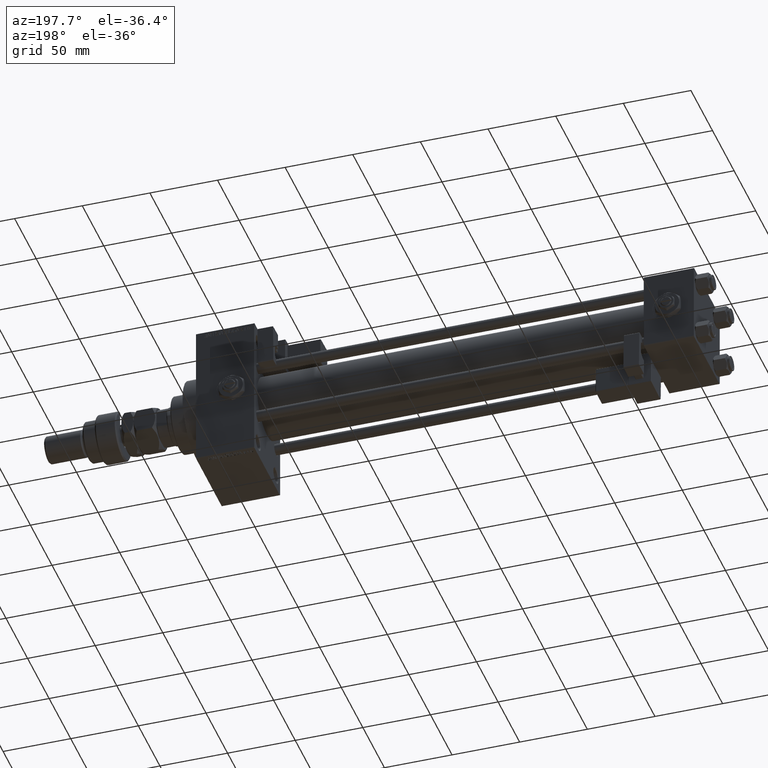
[diagram: clean part render]
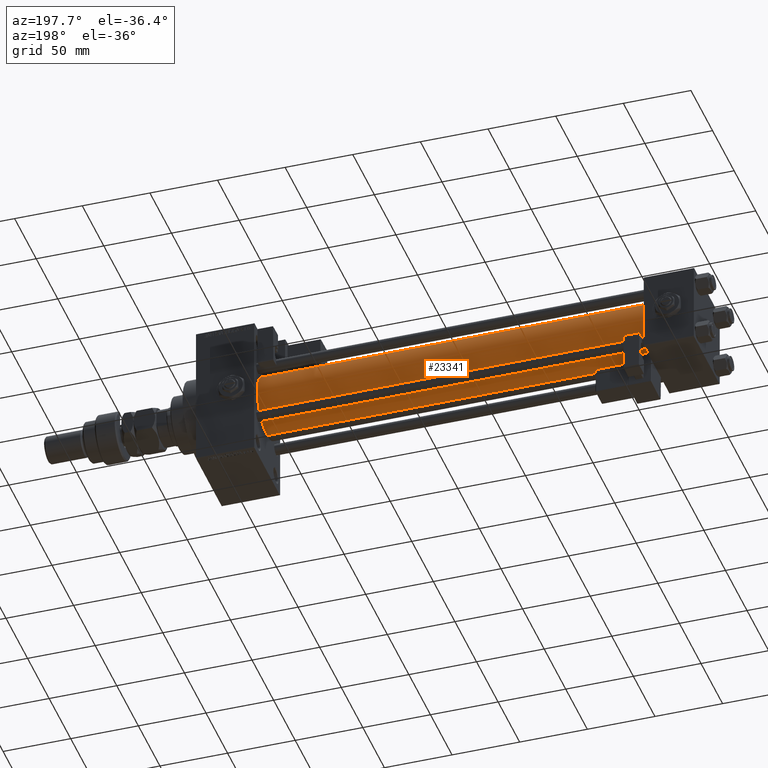
[diagram: same view with one face highlighted and labeled with its STEP entity id]
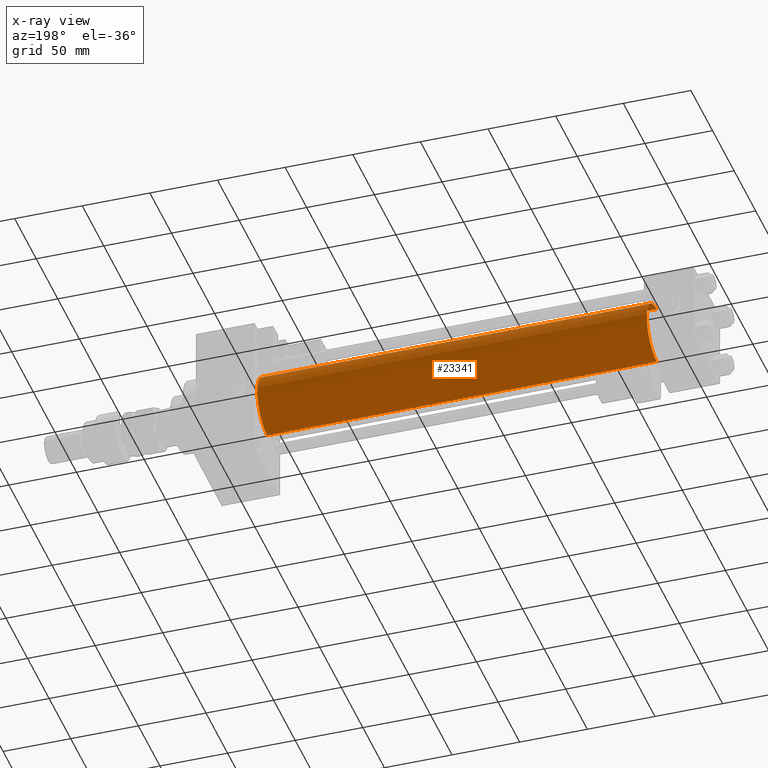
[diagram: x-ray of the same camera — body ghosted, the highlighted face saturated]
A machine part, auxiliary view. The second image highlights one B-rep face of the part: STEP entity #23341.
The next image is the same camera in x-ray: the body ghosted, the highlighted face saturated — about 0% of this face is hidden behind the body in this view.
In plain terms, the highlighted cylindrical surface (edge-blend (fillet) strip) has radius 23 mm, axis along (-1, -0, -0).
Its self-contained STEP definition (entity closure, byte-faithful):
#2811 = CARTESIAN_POINT ( 'NONE',  ( 324.9999999999999432, 2.146024240737016609E-16, -23.00000000000000000 ) ) ;
#4217 = CARTESIAN_POINT ( 'NONE',  ( 36.99999999999997868, -2.602085213965210642E-15, 23.00000000000000000 ) ) ;
#4526 = VERTEX_POINT ( 'NONE', #10812 ) ;
#4757 = CIRCLE ( 'NONE', #43355, 23.00000000000000000 ) ;
#5377 = EDGE_CURVE ( 'NONE', #18995, #4526, #4757, .T. ) ;
#8131 = DIRECTION ( 'NONE',  ( 1.000000000000000000, 0.000000000000000000, 0.000000000000000000 ) ) ;
#8669 = ORIENTED_EDGE ( 'NONE', *, *, #5377, .F. ) ;
#9619 = VERTEX_POINT ( 'NONE', #31274 ) ;
#9654 = VECTOR ( 'NONE', #31928, 1000.000000000000000 ) ;
#10812 = CARTESIAN_POINT ( 'NONE',  ( 324.9999999999999432, -2.602085213965210642E-15, 23.00000000000000000 ) ) ;
#13097 = EDGE_CURVE ( 'NONE', #9619, #38170, #47096, .T. ) ;
#13424 = CARTESIAN_POINT ( 'NONE',  ( 36.99999999999997868, -2.602085213965210642E-15, 0.000000000000000000 ) ) ;
#14097 = DIRECTION ( 'NONE',  ( -1.000000000000000000, -0.000000000000000000, -0.000000000000000000 ) ) ;
#16312 = ORIENTED_EDGE ( 'NONE', *, *, #22618, .T. ) ;
#17127 = ORIENTED_EDGE ( 'NONE', *, *, #13097, .T. ) ;
#17273 = DIRECTION ( 'NONE',  ( 1.000000000000000000, -0.000000000000000000, 0.000000000000000000 ) ) ;
#17935 = DIRECTION ( 'NONE',  ( 0.000000000000000000, 0.000000000000000000, 1.000000000000000000 ) ) ;
#18738 = FACE_OUTER_BOUND ( 'NONE', #47276, .T. ) ;
#18995 = VERTEX_POINT ( 'NONE', #25935 ) ;
#19743 = CARTESIAN_POINT ( 'NONE',  ( 324.9999999999999432, -2.602085213965210642E-15, 23.00000000000000000 ) ) ;
#20234 = AXIS2_PLACEMENT_3D ( 'NONE', #47312, #14097, #17935 ) ;
#22618 = EDGE_CURVE ( 'NONE', #18995, #9619, #53100, .T. ) ;
#22848 = CYLINDRICAL_SURFACE ( 'NONE', #20234, 23.00000000000000000 ) ;
#23341 = ADVANCED_FACE ( 'NONE', ( #18738 ), #22848, .T. ) ;
#23407 = AXIS2_PLACEMENT_3D ( 'NONE', #13424, #17273, #30164 ) ;
#24865 = DIRECTION ( 'NONE',  ( 0.000000000000000000, 0.000000000000000000, -1.000000000000000000 ) ) ;
#25935 = CARTESIAN_POINT ( 'NONE',  ( 324.9999999999999432, 2.146024240737016609E-16, -23.00000000000000000 ) ) ;
#28998 = CARTESIAN_POINT ( 'NONE',  ( 324.9999999999999432, -2.602085213965210642E-15, 0.000000000000000000 ) ) ;
#30164 = DIRECTION ( 'NONE',  ( 0.000000000000000000, 0.000000000000000000, 1.000000000000000000 ) ) ;
#30322 = EDGE_CURVE ( 'NONE', #4526, #38170, #52991, .T. ) ;
#31274 = CARTESIAN_POINT ( 'NONE',  ( 36.99999999999997868, 2.146024240737016609E-16, -23.00000000000000000 ) ) ;
#31928 = DIRECTION ( 'NONE',  ( -1.000000000000000000, -0.000000000000000000, -0.000000000000000000 ) ) ;
#36707 = ORIENTED_EDGE ( 'NONE', *, *, #30322, .F. ) ;
#37093 = VECTOR ( 'NONE', #48578, 1000.000000000000000 ) ;
#38170 = VERTEX_POINT ( 'NONE', #4217 ) ;
#43355 = AXIS2_PLACEMENT_3D ( 'NONE', #28998, #8131, #24865 ) ;
#47096 = CIRCLE ( 'NONE', #23407, 23.00000000000000000 ) ;
#47276 = EDGE_LOOP ( 'NONE', ( #8669, #16312, #17127, #36707 ) ) ;
#47312 = CARTESIAN_POINT ( 'NONE',  ( 324.9999999999999432, -2.602085213965210642E-15, 0.000000000000000000 ) ) ;
#48578 = DIRECTION ( 'NONE',  ( -1.000000000000000000, -0.000000000000000000, -0.000000000000000000 ) ) ;
#52991 = LINE ( 'NONE', #19743, #37093 ) ;
#53100 = LINE ( 'NONE', #2811, #9654 ) ;